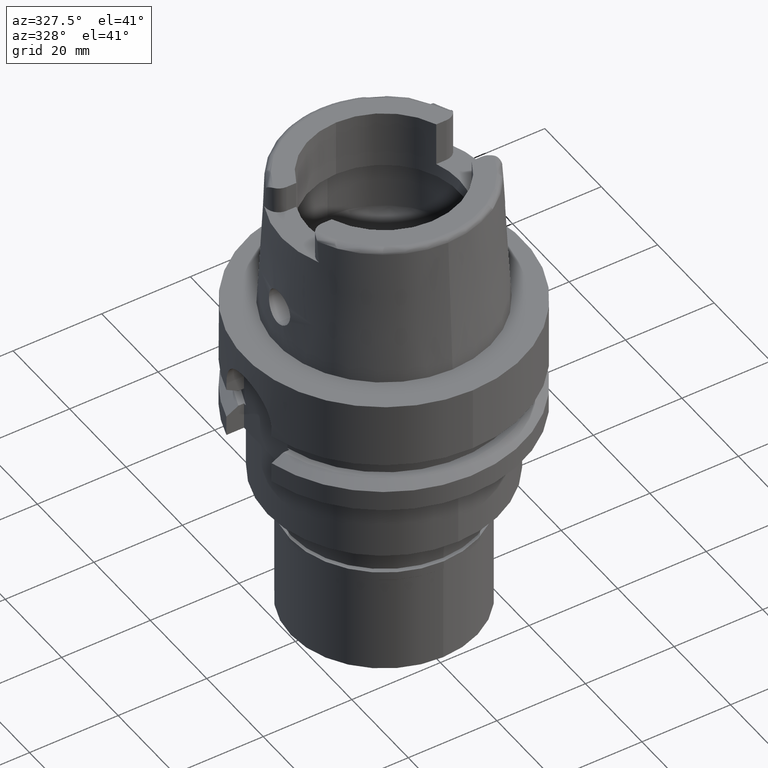
[diagram: clean part render]
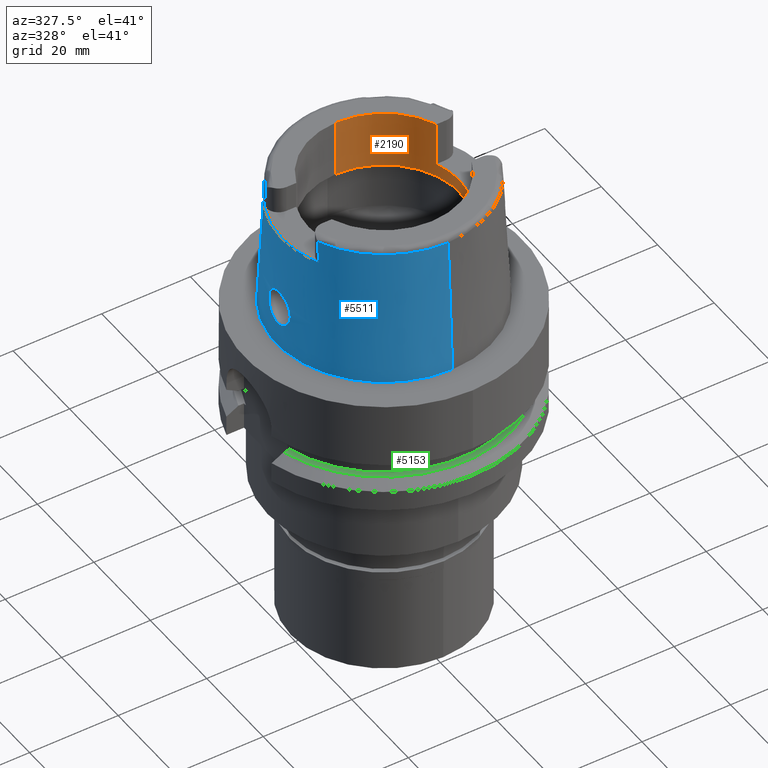
[diagram: same view with three faces highlighted in distinct colors, each labeled with its STEP entity id]
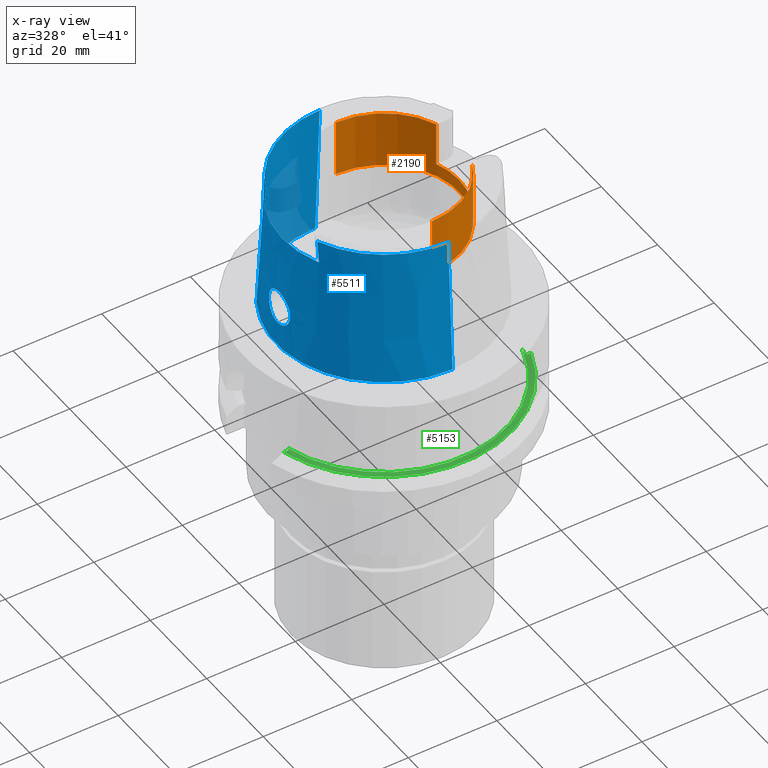
[diagram: x-ray of the same camera — body ghosted, the three highlighted faces saturated]
A machine part, auxiliary view with three faces highlighted in distinct colors.
The next image is the same camera in x-ray (body ghosted, the three faces saturated) — at least one of them is partly hidden behind the body in this view.
Their STEP definitions:

[orange] entity #2190 — the highlighted cylindrical surface (partial cylindrical patch) has radius 17 mm, axis along (0, 0, 1).
#102 = CIRCLE ( 'NONE', #1304, 17.00000000000000000 ) ;
#110 = CARTESIAN_POINT ( 'NONE',  ( 15.80149043602999903, -6.270000000000000462, 22.00000000000000000 ) ) ;
#145 = DIRECTION ( 'NONE',  ( 0.0000000000000000000, 0.0000000000000000000, -1.000000000000000000 ) ) ;
#430 = CARTESIAN_POINT ( 'NONE',  ( 0.0000000000000000000, -17.00000000000000000, 18.99602540378000270 ) ) ;
#465 = VECTOR ( 'NONE', #1370, 1000.000000000000000 ) ;
#515 = DIRECTION ( 'NONE',  ( 0.9294994374136111848, -0.3688235294118045182, 0.0000000000000000000 ) ) ;
#624 = ORIENTED_EDGE ( 'NONE', *, *, #1885, .F. ) ;
#777 = EDGE_CURVE ( 'NONE', #4863, #3178, #5332, .T. ) ;
#780 = VERTEX_POINT ( 'NONE', #4415 ) ;
#862 = VERTEX_POINT ( 'NONE', #973 ) ;
#973 = CARTESIAN_POINT ( 'NONE',  ( 0.0000000000000000000, 17.00000000000000000, 32.00000000000000000 ) ) ;
#1084 = VECTOR ( 'NONE', #4191, 1000.000000000000000 ) ;
#1172 = LINE ( 'NONE', #430, #3212 ) ;
#1201 = CARTESIAN_POINT ( 'NONE',  ( 0.0000000000000000000, -17.00000000000000000, 18.99602540378000270 ) ) ;
#1206 = DIRECTION ( 'NONE',  ( 0.0000000000000000000, 7.376457760500000442E-14, 1.000000000000000000 ) ) ;
#1242 = VERTEX_POINT ( 'NONE', #1201 ) ;
#1280 = AXIS2_PLACEMENT_3D ( 'NONE', #4886, #4013, #4831 ) ;
#1304 = AXIS2_PLACEMENT_3D ( 'NONE', #5213, #4380, #515 ) ;
#1320 = EDGE_LOOP ( 'NONE', ( #2134, #2162, #624, #1712, #1777, #2554, #4855, #3213 ) ) ;
#1370 = DIRECTION ( 'NONE',  ( 0.0000000000000000000, 0.0000000000000000000, 1.000000000000000000 ) ) ;
#1447 = CARTESIAN_POINT ( 'NONE',  ( 15.80149043602999903, -6.270000000000000462, 22.00000000000000000 ) ) ;
#1462 = CIRCLE ( 'NONE', #2096, 17.00000000000000000 ) ;
#1546 = DIRECTION ( 'NONE',  ( 0.0000000000000000000, -7.376457760500000442E-14, 1.000000000000000000 ) ) ;
#1712 = ORIENTED_EDGE ( 'NONE', *, *, #2494, .T. ) ;
#1740 = EDGE_CURVE ( 'NONE', #4856, #5006, #2481, .T. ) ;
#1777 = ORIENTED_EDGE ( 'NONE', *, *, #3456, .T. ) ;
#1851 = CYLINDRICAL_SURFACE ( 'NONE', #1280, 17.00000000000000000 ) ;
#1885 = EDGE_CURVE ( 'NONE', #3063, #862, #3691, .T. ) ;
#1996 = DIRECTION ( 'NONE',  ( 0.0000000000000000000, 1.000000000000000000, 0.0000000000000000000 ) ) ;
#2063 = DIRECTION ( 'NONE',  ( 0.9294994374136111848, 0.3688235294118045182, 0.0000000000000000000 ) ) ;
#2096 = AXIS2_PLACEMENT_3D ( 'NONE', #5389, #145, #1996 ) ;
#2134 = ORIENTED_EDGE ( 'NONE', *, *, #1740, .F. ) ;
#2155 = CARTESIAN_POINT ( 'NONE',  ( 0.0000000000000000000, 17.00000000000000000, 18.99602540378000270 ) ) ;
#2162 = ORIENTED_EDGE ( 'NONE', *, *, #2971, .T. ) ;
#2190 = ADVANCED_FACE ( 'NONE', ( #3517 ), #1851, .F. ) ;
#2457 = VECTOR ( 'NONE', #1546, 1000.000000000000000 ) ;
#2481 = LINE ( 'NONE', #3717, #1084 ) ;
#2494 = EDGE_CURVE ( 'NONE', #3063, #1242, #1462, .T. ) ;
#2554 = ORIENTED_EDGE ( 'NONE', *, *, #3495, .T. ) ;
#2971 = EDGE_CURVE ( 'NONE', #4856, #862, #5462, .T. ) ;
#3011 = AXIS2_PLACEMENT_3D ( 'NONE', #4611, #4990, #2063 ) ;
#3063 = VERTEX_POINT ( 'NONE', #2155 ) ;
#3079 = CARTESIAN_POINT ( 'NONE',  ( 15.80149043602999903, 6.270000000000000462, 32.00000000000000000 ) ) ;
#3120 = AXIS2_PLACEMENT_3D ( 'NONE', #3815, #5126, #4625 ) ;
#3178 = VERTEX_POINT ( 'NONE', #4926 ) ;
#3212 = VECTOR ( 'NONE', #1206, 1000.000000000000000 ) ;
#3213 = ORIENTED_EDGE ( 'NONE', *, *, #3696, .T. ) ;
#3456 = EDGE_CURVE ( 'NONE', #1242, #780, #1172, .T. ) ;
#3495 = EDGE_CURVE ( 'NONE', #780, #3178, #4460, .T. ) ;
#3517 = FACE_OUTER_BOUND ( 'NONE', #1320, .T. ) ;
#3612 = CARTESIAN_POINT ( 'NONE',  ( 15.80149043602999903, 6.270000000000000462, 22.00000000000000000 ) ) ;
#3691 = LINE ( 'NONE', #5433, #2457 ) ;
#3696 = EDGE_CURVE ( 'NONE', #4863, #5006, #102, .T. ) ;
#3717 = CARTESIAN_POINT ( 'NONE',  ( 15.80149043602999903, 6.270000000000000462, 32.00000000000000000 ) ) ;
#3815 = CARTESIAN_POINT ( 'NONE',  ( 0.0000000000000000000, 0.0000000000000000000, 32.00000000000000000 ) ) ;
#4013 = DIRECTION ( 'NONE',  ( 0.0000000000000000000, 0.0000000000000000000, 1.000000000000000000 ) ) ;
#4191 = DIRECTION ( 'NONE',  ( 0.0000000000000000000, 0.0000000000000000000, -1.000000000000000000 ) ) ;
#4380 = DIRECTION ( 'NONE',  ( 0.0000000000000000000, 0.0000000000000000000, 1.000000000000000000 ) ) ;
#4415 = CARTESIAN_POINT ( 'NONE',  ( 0.0000000000000000000, -17.00000000000000000, 32.00000000000000000 ) ) ;
#4460 = CIRCLE ( 'NONE', #3120, 17.00000000000000000 ) ;
#4611 = CARTESIAN_POINT ( 'NONE',  ( 0.0000000000000000000, 0.0000000000000000000, 32.00000000000000000 ) ) ;
#4625 = DIRECTION ( 'NONE',  ( 0.0000000000000000000, -1.000000000000000000, 0.0000000000000000000 ) ) ;
#4831 = DIRECTION ( 'NONE',  ( 0.0000000000000000000, 1.000000000000000000, 0.0000000000000000000 ) ) ;
#4855 = ORIENTED_EDGE ( 'NONE', *, *, #777, .F. ) ;
#4856 = VERTEX_POINT ( 'NONE', #3079 ) ;
#4863 = VERTEX_POINT ( 'NONE', #110 ) ;
#4886 = CARTESIAN_POINT ( 'NONE',  ( 0.0000000000000000000, 0.0000000000000000000, 0.0000000000000000000 ) ) ;
#4926 = CARTESIAN_POINT ( 'NONE',  ( 15.80149043602999903, -6.270000000000000462, 32.00000000000000000 ) ) ;
#4990 = DIRECTION ( 'NONE',  ( 0.0000000000000000000, 0.0000000000000000000, 1.000000000000000000 ) ) ;
#5006 = VERTEX_POINT ( 'NONE', #3612 ) ;
#5126 = DIRECTION ( 'NONE',  ( 0.0000000000000000000, 0.0000000000000000000, 1.000000000000000000 ) ) ;
#5213 = CARTESIAN_POINT ( 'NONE',  ( 0.0000000000000000000, 0.0000000000000000000, 22.00000000000000000 ) ) ;
#5332 = LINE ( 'NONE', #1447, #465 ) ;
#5389 = CARTESIAN_POINT ( 'NONE',  ( 0.0000000000000000000, 0.0000000000000000000, 18.99602540378000270 ) ) ;
#5433 = CARTESIAN_POINT ( 'NONE',  ( 0.0000000000000000000, 17.00000000000000000, 18.99602540378000270 ) ) ;
#5462 = CIRCLE ( 'NONE', #3011, 17.00000000000000000 ) ;

[blue] entity #5511 — the highlighted conical surface has half-angle 2.862 deg.
#37 = CARTESIAN_POINT ( 'NONE',  ( -23.86693676568982880, -2.548399371126447210, 6.248558186787277258 ) ) ;
#62 = CARTESIAN_POINT ( 'NONE',  ( -23.53907289649498580, -3.491479296582071346, 10.36839415100718398 ) ) ;
#85 = CARTESIAN_POINT ( 'NONE',  ( -23.91360589824375182, -2.217988703554286012, 5.973251924152157777 ) ) ;
#95 = ORIENTED_EDGE ( 'NONE', *, *, #1702, .T. ) ;
#113 = CARTESIAN_POINT ( 'NONE',  ( -23.70982271336208314, -3.366675918632559217, 7.346277406837117496 ) ) ;
#117 = CARTESIAN_POINT ( 'NONE',  ( -23.99205744312881450, 1.475681560589053420, 5.552510159684194591 ) ) ;
#122 = ORIENTED_EDGE ( 'NONE', *, *, #1430, .F. ) ;
#140 = CARTESIAN_POINT ( 'NONE',  ( -23.85670555656296443, -2.613932069647232126, 6.311144745075504936 ) ) ;
#143 = B_SPLINE_CURVE_WITH_KNOTS ( 'NONE', 3,
 ( #2357, #2414, #4537, #653 ),
 .UNSPECIFIED., .F., .F.,
 ( 4, 4 ),
 ( 0.0000000000000000000, 1.000000000000000000 ),
 .UNSPECIFIED. ) ;
#163 = VECTOR ( 'NONE', #2156, 1000.000000000000000 ) ;
#164 = CARTESIAN_POINT ( 'NONE',  ( -23.64747639225315012, -1.454741509203121064, 12.45633744927661546 ) ) ;
#187 = CARTESIAN_POINT ( 'NONE',  ( 0.0000000000000000000, 0.0000000000000000000, 15.42996356139999925 ) ) ;
#189 = ORIENTED_EDGE ( 'NONE', *, *, #707, .F. ) ;
#243 = DIRECTION ( 'NONE',  ( 0.0000000000000000000, 0.0000000000000000000, -1.000000000000000000 ) ) ;
#260 = CARTESIAN_POINT ( 'NONE',  ( -23.62294861244114230, 1.980044661199260592, 12.18497602897507015 ) ) ;
#314 = DIRECTION ( 'NONE',  ( -0.0006539142454761719559, -0.9999997861980568503, 0.0000000000000000000 ) ) ;
#315 = CARTESIAN_POINT ( 'NONE',  ( -23.81210958483903894, 2.876104592225963152, 6.592866706176272906 ) ) ;
#341 = CARTESIAN_POINT ( 'NONE',  ( -23.67874317346521096, 3.486601572408784655, 7.619356337110699151 ) ) ;
#376 = CARTESIAN_POINT ( 'NONE',  ( -23.56641494557612049, 3.749854574648461725, 9.043292389269531384 ) ) ;
#399 = ORIENTED_EDGE ( 'NONE', *, *, #5008, .T. ) ;
#407 = CARTESIAN_POINT ( 'NONE',  ( -23.57900744334221699, 3.750882477297525330, 8.791364892060393288 ) ) ;
#415 = ORIENTED_EDGE ( 'NONE', *, *, #2088, .T. ) ;
#434 = CARTESIAN_POINT ( 'NONE',  ( -23.54081574061181925, 3.424884273725877115, 10.52772890142810880 ) ) ;
#452 = CARTESIAN_POINT ( 'NONE',  ( -20.86999859286000003, -9.145656142293999480, 30.58059766507999910 ) ) ;
#457 = CARTESIAN_POINT ( 'NONE',  ( -23.85340754967043964, -2.634656254613015225, 6.331452810761935446 ) ) ;
#489 = CARTESIAN_POINT ( 'NONE',  ( -23.57218955514328229, -3.749466483250372573, 8.930617287637492296 ) ) ;
#516 = CARTESIAN_POINT ( 'NONE',  ( -23.99777630690454444, -1.405099971585415997, 5.523183015562680431 ) ) ;
#523 = VERTEX_POINT ( 'NONE', #1377 ) ;
#531 = CIRCLE ( 'NONE', #4789, 22.77198729362000407 ) ;
#542 = CARTESIAN_POINT ( 'NONE',  ( -23.75409996937189305, -3.172459026305946228, 6.996867773369867649 ) ) ;
#572 = CARTESIAN_POINT ( 'NONE',  ( -23.54847750676615803, -3.728846105121923049, 9.467021241163301681 ) ) ;
#599 = CARTESIAN_POINT ( 'NONE',  ( -23.67751368057999883, 0.0000000000000000000, 12.75000000000000000 ) ) ;
#608 = VERTEX_POINT ( 'NONE', #3765 ) ;
#653 = CARTESIAN_POINT ( 'NONE',  ( -20.86999859286000003, -9.150003160549998071, 30.54568941691999839 ) ) ;
#669 = CARTESIAN_POINT ( 'NONE',  ( -23.65043818808023701, 1.379773009011955986, 12.48700429463887573 ) ) ;
#692 = CARTESIAN_POINT ( 'NONE',  ( -23.62522415126909436, 1.936136883667349373, 12.21169758421638463 ) ) ;
#707 = EDGE_CURVE ( 'NONE', #2443, #3028, #1406, .T. ) ;
#708 = CARTESIAN_POINT ( 'NONE',  ( -23.55668953756119066, -3.099493075046542589, 11.11437400764885730 ) ) ;
#739 = DIRECTION ( 'NONE',  ( 0.0000000000000000000, 0.0000000000000000000, -1.000000000000000000 ) ) ;
#743 = CARTESIAN_POINT ( 'NONE',  ( -23.69267051159611981, 3.435346043563955121, 7.492802983915621162 ) ) ;
#773 = CARTESIAN_POINT ( 'NONE',  ( 0.0000000000000000000, 0.0000000000000000000, 30.85992712280000205 ) ) ;
#774 = CARTESIAN_POINT ( 'NONE',  ( -23.91007285515264869, 2.258131018523893641, 5.995682938418821273 ) ) ;
#797 = CARTESIAN_POINT ( 'NONE',  ( -23.55479551033515406, 3.737395613846533848, 9.313032911970585914 ) ) ;
#828 = CARTESIAN_POINT ( 'NONE',  ( -23.60614948376536404, 2.285497852762458759, 11.97558049787841838 ) ) ;
#857 = CARTESIAN_POINT ( 'NONE',  ( -23.59775295672951501, 2.427828993132538749, 11.85865638258414911 ) ) ;
#884 = ORIENTED_EDGE ( 'NONE', *, *, #2536, .F. ) ;
#911 = CARTESIAN_POINT ( 'NONE',  ( -23.69027898293606071, -3.443729445598351813, 7.515294903885840760 ) ) ;
#934 = CIRCLE ( 'NONE', #1413, 22.77198729362000051 ) ;
#970 = CARTESIAN_POINT ( 'NONE',  ( -23.99707010181375821, -1.414029753780785104, 5.526808701025024639 ) ) ;
#996 = CARTESIAN_POINT ( 'NONE',  ( -23.58567786491152418, -3.738471915505948928, 8.700316143051555429 ) ) ;
#999 = CARTESIAN_POINT ( 'NONE',  ( -23.97828719018148647, 1.633509258632567240, 5.624014295892469484 ) ) ;
#1026 = CARTESIAN_POINT ( 'NONE',  ( -23.85980409118172574, -2.594309442727411597, 6.292115682251250064 ) ) ;
#1056 = CARTESIAN_POINT ( 'NONE',  ( -23.64449928515978883, -1.526934000520813406, 12.42523288203314458 ) ) ;
#1085 = CARTESIAN_POINT ( 'NONE',  ( -23.62923924696841738, -1.859299983534948630, 12.25898013521621088 ) ) ;
#1112 = CARTESIAN_POINT ( 'NONE',  ( -23.57105231770103160, -2.858604598187148849, 11.42810442882995225 ) ) ;
#1120 = AXIS2_PLACEMENT_3D ( 'NONE', #1150, #739, #4125 ) ;
#1139 = CARTESIAN_POINT ( 'NONE',  ( -20.87000040551000168, 9.149999089200999691, 30.54560915661999942 ) ) ;
#1144 = CARTESIAN_POINT ( 'NONE',  ( -23.58262150368767252, -2.671109443045688536, 11.63204851972342802 ) ) ;
#1150 = CARTESIAN_POINT ( 'NONE',  ( 0.0000000000000000000, 0.0000000000000000000, 26.00000000000000000 ) ) ;
#1177 = CARTESIAN_POINT ( 'NONE',  ( -23.72480560330348354, 3.304306329497858297, 7.225787722733134189 ) ) ;
#1184 = ORIENTED_EDGE ( 'NONE', *, *, #4488, .F. ) ;
#1185 = CARTESIAN_POINT ( 'NONE',  ( 0.0000000000000000000, 0.0000000000000000000, 30.85992712280000205 ) ) ;
#1211 = CARTESIAN_POINT ( 'NONE',  ( -23.84601730783146323, 2.680075643955915243, 6.377071594063469462 ) ) ;
#1238 = EDGE_CURVE ( 'NONE', #608, #3165, #4023, .T. ) ;
#1248 = CARTESIAN_POINT ( 'NONE',  ( -23.77667941739695934, 3.064530174727576828, 6.835230246222567807 ) ) ;
#1274 = CARTESIAN_POINT ( 'NONE',  ( -23.83528166601506726, 2.743820866835554817, 6.443518864323947604 ) ) ;
#1308 = CARTESIAN_POINT ( 'NONE',  ( -23.57119514815224193, 2.847115031757780024, 11.45597089718927286 ) ) ;
#1377 = CARTESIAN_POINT ( 'NONE',  ( -20.86974104081999926, -9.111384060244999361, 30.85992587264000164 ) ) ;
#1391 = CARTESIAN_POINT ( 'NONE',  ( -23.63553820938227901, -3.633755880031289465, 8.041266003360489023 ) ) ;
#1406 = B_SPLINE_CURVE_WITH_KNOTS ( 'NONE', 3,
 ( #3685, #1541, #3265, #4983, #5040, #2834, #4549, #5012, #669, #4152, #5451, #4127, #3711, #2863, #4579, #1594, #692, #260, #2025, #3736, #3320, #5527, #5620, #828, #857, #3369, #4267, #3879, #5156, #2588, #1308, #2143, #5130, #3851, #4305, #2559, #434, #5593, #4744, #1735, #4692, #4668, #2946, #5064, #4212, #797, #2615, #3453, #4333, #376, #407, #4630, #1708, #4236, #2533, #3428, #3030, #2108, #341, #3818, #2974, #743, #2198, #1177, #3345, #5182, #5501, #2508, #2173, #5095, #1621, #1248, #2914, #315, #2077, #1274, #3789, #1647, #1211, #5559, #1675, #774, #2998, #3402, #4717, #999, #2640, #4012, #117, #3984, #1878, #4359, #2280, #3931, #3598 ),
 .UNSPECIFIED., .F., .F.,
 ( 4, 2, 2, 1, 1, 1, 2, 2, 2, 2, 1, 1, 2, 2, 2, 1, 1, 2, 2, 2, 2, 1, 1, 1, 2, 2, 2, 2, 1, 2, 2, 2, 2, 1, 1, 1, 2, 2, 2, 2, 1, 1, 2, 2, 2, 1, 1, 1, 2, 2, 2, 2, 2, 1, 1, 2, 2, 4 ),
 ( 0.0000000000000000000, 0.06249999999999567013, 0.09374999999999350520, 0.1093749999999924089, 0.1171874999999918537, 0.1210937499999916456, 0.1230468749999914652, 0.1249999999999912709, 0.1562499999999895917, 0.1718749999999887590, 0.1796874999999884259, 0.1835937499999881206, 0.1855468749999880373, 0.1874999999999879541, 0.2187499999999875933, 0.2343749999999873712, 0.2421874999999872602, 0.2460937499999873712, 0.2499999999999874545, 0.3124999999999888978, 0.3437499999999896194, 0.3593749999999899525, 0.3671874999999902300, 0.3710937499999905631, 0.3730468749999908962, 0.3749999999999912847, 0.4374999999999942824, 0.4687499999999960032, 0.4843749999999966138, 0.4921874999999970024, 0.4999999999999973355, 0.5625000000000000000, 0.5937500000000011102, 0.6093750000000019984, 0.6171875000000025535, 0.6210937500000026645, 0.6230468750000026645, 0.6250000000000026645, 0.6562500000000032196, 0.6718750000000035527, 0.6796875000000036637, 0.6835937500000037748, 0.6855468750000037748, 0.6875000000000037748, 0.7187500000000031086, 0.7343750000000028866, 0.7421875000000028866, 0.7460937500000027756, 0.7480468750000027756, 0.7500000000000027756, 0.8125000000000018874, 0.8437500000000014433, 0.8593750000000013323, 0.8671875000000012212, 0.8710937500000009992, 0.8730468750000009992, 0.8750000000000009992, 1.000000000000000000 ),
 .UNSPECIFIED. ) ;
#1413 = AXIS2_PLACEMENT_3D ( 'NONE', #773, #4211, #314 ) ;
#1421 = CARTESIAN_POINT ( 'NONE',  ( -24.05252611747000913, -0.2325062641190926982, 5.249999999999995559 ) ) ;
#1430 = EDGE_CURVE ( 'NONE', #3781, #523, #3491, .T. ) ;
#1445 = CARTESIAN_POINT ( 'NONE',  ( -24.01190396931671245, -1.213967389283530762, 5.450965328248620345 ) ) ;
#1474 = CARTESIAN_POINT ( 'NONE',  ( -24.04786694635565070, -0.4701825971772083390, 5.271686868304494844 ) ) ;
#1501 = CARTESIAN_POINT ( 'NONE',  ( -23.64626439432585769, -1.484483227917293258, 12.44370532445059219 ) ) ;
#1529 = CARTESIAN_POINT ( 'NONE',  ( -23.61647311026029783, -2.100244732309977991, 12.10668269088077764 ) ) ;
#1539 = ORIENTED_EDGE ( 'NONE', *, *, #1658, .T. ) ;
#1541 = CARTESIAN_POINT ( 'NONE',  ( -23.67751368057999528, 0.2261845899276223870, 12.75000000000000178 ) ) ;
#1556 = CARTESIAN_POINT ( 'NONE',  ( -23.61186578718647411, -2.183365671323152846, 12.04907515657591510 ) ) ;
#1594 = CARTESIAN_POINT ( 'NONE',  ( -23.62964050905474167, 1.849407224054583354, 12.26292852184180227 ) ) ;
#1612 = CARTESIAN_POINT ( 'NONE',  ( -23.58009706931573746, -2.711754786890547830, 11.59025959888125357 ) ) ;
#1621 = CARTESIAN_POINT ( 'NONE',  ( -23.76173591032293331, 3.136266348908495871, 6.944180876463341257 ) ) ;
#1647 = CARTESIAN_POINT ( 'NONE',  ( -23.84422667706581223, 2.690787340262043692, 6.388061568589341377 ) ) ;
#1658 = EDGE_CURVE ( 'NONE', #3825, #523, #934, .T. ) ;
#1675 = CARTESIAN_POINT ( 'NONE',  ( -23.88110697219536505, 2.468987446921765638, 6.163109209297871871 ) ) ;
#1702 = EDGE_CURVE ( 'NONE', #608, #4365, #531, .T. ) ;
#1708 = CARTESIAN_POINT ( 'NONE',  ( -23.62269479600756128, 3.665237063158671482, 8.197888833525086127 ) ) ;
#1735 = CARTESIAN_POINT ( 'NONE',  ( -23.53988041603913572, 3.456880562189013961, 10.45345164496857926 ) ) ;
#1792 = CARTESIAN_POINT ( 'NONE',  ( -20.86979783655000276, -9.115619586591000356, 30.82499216244000095 ) ) ;
#1796 = CARTESIAN_POINT ( 'NONE',  ( -23.74024690177523311, -3.236010739350211551, 7.101072110035448581 ) ) ;
#1822 = CARTESIAN_POINT ( 'NONE',  ( -23.53925539027454406, -3.482780331073523694, 10.39025275089137601 ) ) ;
#1839 = CARTESIAN_POINT ( 'NONE',  ( -20.86999859286000003, -9.150003160549998071, 30.54568941691999839 ) ) ;
#1845 = CARTESIAN_POINT ( 'NONE',  ( -23.88455557737880497, -2.429686111729484121, 6.142713444073161000 ) ) ;
#1873 = CARTESIAN_POINT ( 'NONE',  ( -23.69334030845979555, -3.431965208017772273, 7.488346675105336026 ) ) ;
#1878 = CARTESIAN_POINT ( 'NONE',  ( -23.99460756805540740, 1.444506445318488819, 5.539371910986499614 ) ) ;
#1897 = LINE ( 'NONE', #4052, #2051 ) ;
#1901 = CARTESIAN_POINT ( 'NONE',  ( -23.98208685718532251, -1.602173758101092638, 5.603767711986091804 ) ) ;
#1957 = CARTESIAN_POINT ( 'NONE',  ( -20.87000000000000099, 9.702213322398998585, 26.00000000000000000 ) ) ;
#1959 = CARTESIAN_POINT ( 'NONE',  ( -23.58295833446865686, -2.665693743501466706, 11.63753428848848337 ) ) ;
#1960 = AXIS2_PLACEMENT_3D ( 'NONE', #187, #243, #4483 ) ;
#2015 = CARTESIAN_POINT ( 'NONE',  ( -23.63951267324578609, -1.641222962009457387, 12.37225073941533537 ) ) ;
#2025 = CARTESIAN_POINT ( 'NONE',  ( -23.62017593725542142, 2.032114524079682294, 12.15175628196970692 ) ) ;
#2039 = CARTESIAN_POINT ( 'NONE',  ( -23.64288300526770215, -1.564521820001163244, 12.40816203251383598 ) ) ;
#2051 = VECTOR ( 'NONE', #4967, 1000.000000000000000 ) ;
#2070 = CARTESIAN_POINT ( 'NONE',  ( -20.86989332434000133, 9.124125752769000286, 30.75512690550999650 ) ) ;
#2075 = CARTESIAN_POINT ( 'NONE',  ( 0.0000000000000000000, 22.77198729362000051, 30.85992712280000205 ) ) ;
#2077 = CARTESIAN_POINT ( 'NONE',  ( -23.82278402448928389, 2.816412120716584422, 6.522719428519566875 ) ) ;
#2088 = EDGE_CURVE ( 'NONE', #3885, #2384, #2106, .T. ) ;
#2106 = CIRCLE ( 'NONE', #3718, 24.31503482328999866 ) ;
#2108 = CARTESIAN_POINT ( 'NONE',  ( -23.67625605228635521, 3.495636864080432726, 7.642247016898762624 ) ) ;
#2143 = CARTESIAN_POINT ( 'NONE',  ( -23.56125733369829334, 3.008786301809472263, 11.25149727342976647 ) ) ;
#2152 = EDGE_LOOP ( 'NONE', ( #4493, #5612, #95, #399, #415, #884, #1539, #122, #4507, #4684 ) ) ;
#2156 = DIRECTION ( 'NONE',  ( 0.0000000000000000000, -0.04993926899645239476, -0.9987522562738468945 ) ) ;
#2173 = CARTESIAN_POINT ( 'NONE',  ( -23.75857800048417801, 3.151325765911684229, 6.967335915439326399 ) ) ;
#2198 = CARTESIAN_POINT ( 'NONE',  ( -23.70467341150807172, 3.388770747556582474, 7.389468747164110063 ) ) ;
#2225 = CARTESIAN_POINT ( 'NONE',  ( -23.65916494731278519, -3.560589809446938148, 7.793148687283476761 ) ) ;
#2254 = CARTESIAN_POINT ( 'NONE',  ( -23.58021830477617797, -3.744757397502449514, 8.787639155437336314 ) ) ;
#2277 = CARTESIAN_POINT ( 'NONE',  ( -23.96281606204351533, -1.801518040395591047, 5.701926437908838352 ) ) ;
#2280 = CARTESIAN_POINT ( 'NONE',  ( -24.03355402783665795, 0.9597228018040118158, 5.339038238792069180 ) ) ;
#2335 = CARTESIAN_POINT ( 'NONE',  ( -23.57076657264601849, -3.749875813616083242, 8.957358290968347347 ) ) ;
#2357 = CARTESIAN_POINT ( 'NONE',  ( -20.86999931535000385, -9.702216590572000143, 26.00000000000000000 ) ) ;
#2358 = CARTESIAN_POINT ( 'NONE',  ( -23.64764117235090168, -1.450669297853332651, 12.45805260406757142 ) ) ;
#2383 = CARTESIAN_POINT ( 'NONE',  ( -23.56840573119958648, -2.902124649144996571, 11.37583869404859271 ) ) ;
#2384 = VERTEX_POINT ( 'NONE', #3382 ) ;
#2414 = CARTESIAN_POINT ( 'NONE',  ( -20.87000000000000099, -9.517135092919289718, 27.56041024058491118 ) ) ;
#2443 = VERTEX_POINT ( 'NONE', #5359 ) ;
#2508 = CARTESIAN_POINT ( 'NONE',  ( -23.75557938732305274, 3.165541702338235286, 6.989433065581452276 ) ) ;
#2533 = CARTESIAN_POINT ( 'NONE',  ( -23.65042748145133444, 3.583781491580630973, 7.894093917726451970 ) ) ;
#2536 = EDGE_CURVE ( 'NONE', #3825, #2384, #5141, .T. ) ;
#2559 = CARTESIAN_POINT ( 'NONE',  ( -23.54217116025427714, 3.385185970402292188, 10.61503469236005337 ) ) ;
#2587 = CONICAL_SURFACE ( 'NONE', #1960, 23.54351105844999736, 0.04996004983832824653 ) ;
#2588 = CARTESIAN_POINT ( 'NONE',  ( -23.58452253103427410, 2.640987395853088504, 11.66232603909234022 ) ) ;
#2615 = CARTESIAN_POINT ( 'NONE',  ( -23.55823049826519622, 3.744172419575846344, 9.223392986036472507 ) ) ;
#2640 = CARTESIAN_POINT ( 'NONE',  ( -23.98508780632461423, 1.557406987274509769, 5.588582923610379893 ) ) ;
#2657 = CARTESIAN_POINT ( 'NONE',  ( -20.86989310983999957, -9.124125562990998972, 30.75513688798999823 ) ) ;
#2673 = VERTEX_POINT ( 'NONE', #3608 ) ;
#2747 = CARTESIAN_POINT ( 'NONE',  ( -23.53947603672050803, -3.630468962214536077, 9.947402164284465442 ) ) ;
#2779 = CARTESIAN_POINT ( 'NONE',  ( -23.53872130686582764, -3.511272278232731914, 10.31726338497156270 ) ) ;
#2798 = CARTESIAN_POINT ( 'NONE',  ( -23.58242515161169806, -2.674267349442099651, 11.62883989824676512 ) ) ;
#2823 = CARTESIAN_POINT ( 'NONE',  ( -23.56097155131818255, -3.025943496315236736, 11.21898938130886769 ) ) ;
#2834 = CARTESIAN_POINT ( 'NONE',  ( -23.65928294391524744, 1.127723691531520522, 12.57698042887864531 ) ) ;
#2863 = CARTESIAN_POINT ( 'NONE',  ( -23.64016007769428285, 1.629129562121118591, 12.37988843132438532 ) ) ;
#2878 = CARTESIAN_POINT ( 'NONE',  ( -23.60632189273907144, -2.281261508594775389, 11.97677745135559668 ) ) ;
#2899 = EDGE_CURVE ( 'NONE', #3165, #3822, #5132, .T. ) ;
#2914 = CARTESIAN_POINT ( 'NONE',  ( -23.79081113822478244, 2.991974080024986105, 6.736006982543814026 ) ) ;
#2924 = DIRECTION ( 'NONE',  ( -0.9164655183265837390, 0.4001136759951928745, 0.0000000000000000000 ) ) ;
#2946 = CARTESIAN_POINT ( 'NONE',  ( -23.53834517510676250, 3.630205079123302703, 9.971410252296070809 ) ) ;
#2974 = CARTESIAN_POINT ( 'NONE',  ( -23.68142465180497780, 3.476791983498621175, 7.594845390269592045 ) ) ;
#2998 = CARTESIAN_POINT ( 'NONE',  ( -23.94702313564318885, 1.943840893170437178, 5.790696842323831639 ) ) ;
#3028 = VERTEX_POINT ( 'NONE', #5165 ) ;
#3030 = CARTESIAN_POINT ( 'NONE',  ( -23.67053328333213713, 3.516120298814168876, 7.695675379310091380 ) ) ;
#3085 = CARTESIAN_POINT ( 'NONE',  ( -23.79651084493820434, -2.969631573496753330, 6.697408355459383955 ) ) ;
#3149 = CARTESIAN_POINT ( 'NONE',  ( -24.01758233411234045, -1.125085929231918636, 5.422218825660601205 ) ) ;
#3165 = VERTEX_POINT ( 'NONE', #3992 ) ;
#3177 = CARTESIAN_POINT ( 'NONE',  ( -23.59735264442415215, -3.721550044466943152, 8.524084067195749626 ) ) ;
#3205 = CARTESIAN_POINT ( 'NONE',  ( -23.54104773735423706, -3.659594206878918676, 9.827554088760006579 ) ) ;
#3232 = CARTESIAN_POINT ( 'NONE',  ( -23.59428146664826187, -2.485351782107193319, 11.80879757820457598 ) ) ;
#3255 = CARTESIAN_POINT ( 'NONE',  ( -23.61623115223439839, -2.104643205043622789, 12.10370605627159613 ) ) ;
#3265 = CARTESIAN_POINT ( 'NONE',  ( -23.67508291569135537, 0.4619866742327523035, 12.72949589301829754 ) ) ;
#3281 = CARTESIAN_POINT ( 'NONE',  ( -23.61588654514601515, -2.110899463028394152, 12.09945442961494777 ) ) ;
#3312 = CARTESIAN_POINT ( 'NONE',  ( -23.53946649069358443, -3.473383394216167375, 10.41355827642145293 ) ) ;
#3320 = CARTESIAN_POINT ( 'NONE',  ( -23.61814774169252118, 2.069624337900883404, 12.12717700283748989 ) ) ;
#3337 = CARTESIAN_POINT ( 'NONE',  ( -23.64699503738819075, -1.466596865459513621, 12.45132366724636519 ) ) ;
#3345 = CARTESIAN_POINT ( 'NONE',  ( -23.73187097422319169, 3.273715085375766165, 7.169789818968509643 ) ) ;
#3369 = CARTESIAN_POINT ( 'NONE',  ( -23.59355217100311108, 2.497558444685567647, 11.79844615899188653 ) ) ;
#3382 = CARTESIAN_POINT ( 'NONE',  ( 0.0000000000000000000, -24.31503482328999866, -9.841016890276999833E-13 ) ) ;
#3392 = CARTESIAN_POINT ( 'NONE',  ( -20.86974110883999955, 9.111383541124999041, 30.85992743326000110 ) ) ;
#3402 = CARTESIAN_POINT ( 'NONE',  ( -23.95825680514912648, 1.839349385048463903, 5.730011915594805494 ) ) ;
#3428 = CARTESIAN_POINT ( 'NONE',  ( -23.65940980060945265, 3.554710681934169170, 7.802560464549448405 ) ) ;
#3453 = CARTESIAN_POINT ( 'NONE',  ( -23.56216969251787674, 3.747720454209733543, 9.134074154354864916 ) ) ;
#3481 = CIRCLE ( 'NONE', #1120, 23.01499170873999134 ) ;
#3483 = EDGE_LOOP ( 'NONE', ( #189, #1184 ) ) ;
#3491 = B_SPLINE_CURVE_WITH_KNOTS ( 'NONE', 3,
 ( #1839, #452, #3532, #2657, #1792, #4407 ),
 .UNSPECIFIED., .F., .F.,
 ( 4, 1, 1, 4 ),
 ( 0.0000000000000000000, 0.3333333333333000081, 0.6666666666667000474, 1.000000000000000000 ),
 .UNSPECIFIED. ) ;
#3514 = CARTESIAN_POINT ( 'NONE',  ( -23.53847581952525303, -3.577581770201611278, 10.12572315164280212 ) ) ;
#3532 = CARTESIAN_POINT ( 'NONE',  ( -20.86998097129999863, -9.136996582012999468, 30.65033329799000228 ) ) ;
#3536 = CARTESIAN_POINT ( 'NONE',  ( -23.53938412224086463, -3.476932966353353027, 10.40481268977713825 ) ) ;
#3568 = CARTESIAN_POINT ( 'NONE',  ( -23.89204041954330293, -2.376715549713676268, 6.098574893834931565 ) ) ;
#3594 = CARTESIAN_POINT ( 'NONE',  ( -20.86999859286000003, -9.150003160549998071, 30.54568941691999839 ) ) ;
#3598 = CARTESIAN_POINT ( 'NONE',  ( -24.05252611746999847, 7.753366781647998699E-14, 5.250000000000000000 ) ) ;
#3608 = CARTESIAN_POINT ( 'NONE',  ( -20.86999931535000385, -9.702216590572000143, 26.00000000000000000 ) ) ;
#3642 = CARTESIAN_POINT ( 'NONE',  ( -23.61537164376080966, -2.120237744415277792, 12.09308756806806429 ) ) ;
#3666 = FACE_OUTER_BOUND ( 'NONE', #2152, .T. ) ;
#3673 = CARTESIAN_POINT ( 'NONE',  ( 0.0000000000000000000, -22.77198729362000051, 30.85992712280000205 ) ) ;
#3674 = CARTESIAN_POINT ( 'NONE',  ( -23.57527498726469517, -2.789791845284104177, 11.50614530734081775 ) ) ;
#3685 = CARTESIAN_POINT ( 'NONE',  ( -23.67751368057999883, 0.0000000000000000000, 12.75000000000000000 ) ) ;
#3711 = CARTESIAN_POINT ( 'NONE',  ( -23.64461154279262445, 1.526828918330954687, 12.42659700833796599 ) ) ;
#3718 = AXIS2_PLACEMENT_3D ( 'NONE', #5560, #5131, #5621 ) ;
#3736 = CARTESIAN_POINT ( 'NONE',  ( -23.61896238791443636, 2.054598769638676270, 12.13706946096298545 ) ) ;
#3753 = CARTESIAN_POINT ( 'NONE',  ( -23.60997495842636340, -2.216922664050854586, 12.02464351915915231 ) ) ;
#3765 = CARTESIAN_POINT ( 'NONE',  ( -20.86974110883999955, 9.111383541124999041, 30.85992743326000110 ) ) ;
#3781 = VERTEX_POINT ( 'NONE', #3594 ) ;
#3782 = CARTESIAN_POINT ( 'NONE',  ( -20.86998013696999976, 9.136999223130001013, 30.65036981053000176 ) ) ;
#3789 = CARTESIAN_POINT ( 'NONE',  ( -23.84154151892806794, 2.706804287063559133, 6.404595846856984132 ) ) ;
#3812 = CARTESIAN_POINT ( 'NONE',  ( -20.87000040551000168, 9.149999089200999691, 30.54560915661999942 ) ) ;
#3818 = CARTESIAN_POINT ( 'NONE',  ( -23.68040892223172023, 3.480520782069465024, 7.604097949646052790 ) ) ;
#3822 = VERTEX_POINT ( 'NONE', #1957 ) ;
#3825 = VERTEX_POINT ( 'NONE', #3673 ) ;
#3838 = EDGE_CURVE ( 'NONE', #2673, #3781, #143, .T. ) ;
#3851 = CARTESIAN_POINT ( 'NONE',  ( -23.54724431543101204, 3.268096955834818740, 10.84258591701417096 ) ) ;
#3879 = CARTESIAN_POINT ( 'NONE',  ( -23.58654361010976785, 2.609388539349847047, 11.69329297915370702 ) ) ;
#3885 = VERTEX_POINT ( 'NONE', #4117 ) ;
#3929 = CARTESIAN_POINT ( 'NONE',  ( -23.69991197860129972, -3.406237261255837367, 7.431233387739938578 ) ) ;
#3931 = CARTESIAN_POINT ( 'NONE',  ( -24.05252611747000202, 0.4685048129577800702, 5.250000000000009770 ) ) ;
#3958 = CARTESIAN_POINT ( 'NONE',  ( -23.55705024305500217, -3.750795020597395446, 9.225389481899499700 ) ) ;
#3981 = CARTESIAN_POINT ( 'NONE',  ( -23.92679748698672171, -2.112440567168403227, 5.899168020048473515 ) ) ;
#3984 = CARTESIAN_POINT ( 'NONE',  ( -23.99359259507223996, 1.456966021966892288, 5.544599060619758824 ) ) ;
#3992 = CARTESIAN_POINT ( 'NONE',  ( -20.87000040551000168, 9.149999089200999691, 30.54560915661999942 ) ) ;
#4010 = CARTESIAN_POINT ( 'NONE',  ( -23.82483661827196286, -2.812649495064081684, 6.507898812718782011 ) ) ;
#4012 = CARTESIAN_POINT ( 'NONE',  ( -23.98838657464701640, 1.519530167650405605, 5.571466582269266610 ) ) ;
#4023 = B_SPLINE_CURVE_WITH_KNOTS ( 'NONE', 3,
 ( #3392, #4204, #2070, #3782, #5520, #3812 ),
 .UNSPECIFIED., .F., .F.,
 ( 4, 1, 1, 4 ),
 ( 0.0000000000000000000, 0.3333333333333000081, 0.6666666666667000474, 1.000000000000000000 ),
 .UNSPECIFIED. ) ;
#4034 = CARTESIAN_POINT ( 'NONE',  ( -23.71989313676844091, -3.324294785510838235, 7.263520130221996496 ) ) ;
#4052 = CARTESIAN_POINT ( 'NONE',  ( 0.0000000000000000000, 22.77198729362000051, 30.85992712280000205 ) ) ;
#4056 = CARTESIAN_POINT ( 'NONE',  ( -23.58584161187914319, -2.622122654595141711, 11.68369932162007885 ) ) ;
#4078 = FACE_BOUND ( 'NONE', #3483, .T. ) ;
#4117 = CARTESIAN_POINT ( 'NONE',  ( 0.0000000000000000000, 24.31503482328999866, -1.705302565823999926E-12 ) ) ;
#4125 = DIRECTION ( 'NONE',  ( -0.9068002397791221636, -0.4215605829967106200, 0.0000000000000000000 ) ) ;
#4127 = CARTESIAN_POINT ( 'NONE',  ( -23.64857781186163521, 1.427310338101408504, 12.46775508506759067 ) ) ;
#4142 = CARTESIAN_POINT ( 'NONE',  ( -23.58144849310953006, -2.689982922579907676, 11.61278258400672669 ) ) ;
#4152 = CARTESIAN_POINT ( 'NONE',  ( -23.64954801539154161, 1.402660035774608627, 12.47780283863645678 ) ) ;
#4169 = CARTESIAN_POINT ( 'NONE',  ( -23.66765883250442570, -0.9515036898739328564, 12.66615373187040028 ) ) ;
#4204 = CARTESIAN_POINT ( 'NONE',  ( -20.86979790994000084, 9.115619351649998592, 30.82499135255000056 ) ) ;
#4211 = DIRECTION ( 'NONE',  ( 0.0000000000000000000, 0.0000000000000000000, -1.000000000000000000 ) ) ;
#4212 = CARTESIAN_POINT ( 'NONE',  ( -23.54859780957185933, 3.719459429760219038, 9.492528033590108549 ) ) ;
#4236 = CARTESIAN_POINT ( 'NONE',  ( -23.63319896927395902, 3.636775360929737300, 8.076724773994001794 ) ) ;
#4267 = CARTESIAN_POINT ( 'NONE',  ( -23.58864684045748561, 2.576249162346222032, 11.72526874015176190 ) ) ;
#4305 = CARTESIAN_POINT ( 'NONE',  ( -23.54369936168428623, 3.347757878200973369, 10.69064701594456146 ) ) ;
#4320 = EDGE_CURVE ( 'NONE', #2673, #3822, #3481, .T. ) ;
#4333 = CARTESIAN_POINT ( 'NONE',  ( -23.56490786786911684, 3.749375525138953780, 9.074616708966365408 ) ) ;
#4359 = CARTESIAN_POINT ( 'NONE',  ( -23.99501697076891205, 1.439453716327697697, 5.537264553817606405 ) ) ;
#4365 = VERTEX_POINT ( 'NONE', #2075 ) ;
#4382 = CARTESIAN_POINT ( 'NONE',  ( -23.57532548907224523, -3.747978080891394725, 8.873614973393374683 ) ) ;
#4407 = CARTESIAN_POINT ( 'NONE',  ( -20.86974104081999926, -9.111384060244999361, 30.85992587264000164 ) ) ;
#4412 = CARTESIAN_POINT ( 'NONE',  ( -23.99892289979597138, -1.390454640844187795, 5.517300161487356469 ) ) ;
#4436 = CARTESIAN_POINT ( 'NONE',  ( -23.85463060590261364, -2.627000950408391322, 6.323911538603638860 ) ) ;
#4464 = CARTESIAN_POINT ( 'NONE',  ( -24.03388943301256830, -0.8276374240914532443, 5.340459193435788343 ) ) ;
#4483 = DIRECTION ( 'NONE',  ( 0.0000000000000000000, -1.000000000000000000, 0.0000000000000000000 ) ) ;
#4488 = EDGE_CURVE ( 'NONE', #3028, #2443, #4879, .T. ) ;
#4492 = CARTESIAN_POINT ( 'NONE',  ( -23.54134642425172430, -3.395177618169952893, 10.60480961321079185 ) ) ;
#4493 = ORIENTED_EDGE ( 'NONE', *, *, #2899, .F. ) ;
#4507 = ORIENTED_EDGE ( 'NONE', *, *, #3838, .F. ) ;
#4533 = CARTESIAN_POINT ( 'NONE',  ( -20.87000000000000099, 9.517059732168780428, 27.56089567595799039 ) ) ;
#4537 = CARTESIAN_POINT ( 'NONE',  ( -20.87000000000000099, -9.333063949578622953, 29.07564004622490472 ) ) ;
#4539 = CARTESIAN_POINT ( 'NONE',  ( -23.67751368058000594, -0.4549834230990796313, 12.75000000000000178 ) ) ;
#4549 = CARTESIAN_POINT ( 'NONE',  ( -23.65632044920722876, 1.219395919964804786, 12.54724499145180161 ) ) ;
#4579 = CARTESIAN_POINT ( 'NONE',  ( -23.63240512108486158, 1.793038628779165977, 12.29413337773382686 ) ) ;
#4596 = CARTESIAN_POINT ( 'NONE',  ( -23.54586581478204721, -3.296123540020791332, 10.80494007514129606 ) ) ;
#4630 = CARTESIAN_POINT ( 'NONE',  ( -23.59412678076392211, 3.731742809861808396, 8.557308446898165499 ) ) ;
#4668 = CARTESIAN_POINT ( 'NONE',  ( -23.53725250845516115, 3.558453608605617102, 10.20948820649446098 ) ) ;
#4684 = ORIENTED_EDGE ( 'NONE', *, *, #4320, .T. ) ;
#4692 = CARTESIAN_POINT ( 'NONE',  ( -23.53982320900321668, 3.459017107716821915, 10.44836532920695582 ) ) ;
#4717 = CARTESIAN_POINT ( 'NONE',  ( -23.97348267342169237, 1.684709805232359026, 5.649233680146961589 ) ) ;
#4744 = CARTESIAN_POINT ( 'NONE',  ( -23.54002315669925594, 3.451663937358808276, 10.46579704223974794 ) ) ;
#4789 = AXIS2_PLACEMENT_3D ( 'NONE', #1185, #5486, #2924 ) ;
#4798 = CARTESIAN_POINT ( 'NONE',  ( -24.05252611746999847, 7.753366781647998699E-14, 5.250000000000000000 ) ) ;
#4854 = CARTESIAN_POINT ( 'NONE',  ( -24.00062913921772534, -1.368472610612581519, 5.508550774380538861 ) ) ;
#4879 = B_SPLINE_CURVE_WITH_KNOTS ( 'NONE', 3,
 ( #4798, #1421, #1474, #4464, #5356, #3149, #1445, #5244, #4854, #4412, #516, #970, #1901, #2277, #3981, #85, #3568, #1845, #5298, #37, #1026, #140, #4436, #457, #4010, #3085, #542, #1796, #4034, #113, #3929, #1873, #911, #2225, #1391, #5330, #3177, #996, #2254, #4382, #489, #2335, #3958, #572, #3205, #2747, #3514, #4912, #2779, #62, #1822, #3536, #3312, #4492, #4596, #708, #2823, #2383, #1112, #3674, #4944, #1612, #4142, #4970, #2798, #1144, #5415, #1959, #4056, #3232, #5442, #5495, #2878, #3753, #1556, #5468, #3642, #3281, #3255, #1529, #4998, #1085, #5385, #2015, #2039, #1056, #1501, #3337, #164, #2358, #4169, #4539, #599 ),
 .UNSPECIFIED., .F., .F.,
 ( 4, 2, 2, 1, 1, 1, 2, 2, 2, 2, 2, 1, 1, 2, 2, 2, 2, 1, 2, 2, 2, 2, 1, 2, 2, 2, 2, 1, 1, 1, 2, 2, 2, 2, 2, 1, 1, 1, 1, 2, 2, 2, 2, 2, 1, 1, 1, 2, 2, 2, 2, 1, 1, 2, 2, 4 ),
 ( 0.0000000000000000000, 0.06249999999983120447, 0.09374999999974679976, 0.1093749999997045974, 0.1171874999996834477, 0.1210937499996729005, 0.1230468749996676270, 0.1249999999996623534, 0.1874999999994902966, 0.2187499999994041988, 0.2343749999993611499, 0.2421874999993396949, 0.2460937499993288979, 0.2480468749993234856, 0.2499999999993180733, 0.3124999999991438515, 0.3437499999990568655, 0.3593749999990132893, 0.3671874999989915289, 0.3749999999989697685, 0.4374999999987942423, 0.4687499999987064792, 0.4843749999986629029, 0.4921874999986411425, 0.4999999999986193822, 0.5624999999984465759, 0.5937499999983600896, 0.6093749999983166799, 0.6171874999982951415, 0.6210937499982841503, 0.6230468749982787102, 0.6249999999982731591, 0.6874999999980951904, 0.7187499999980063725, 0.7343749999979619636, 0.7421874999979397591, 0.7460937499979285459, 0.7480468749979229948, 0.7490234374979203302, 0.7495117187479189980, 0.7499999999979177767, 0.7812499999981813437, 0.7968749999983132382, 0.8046874999983790744, 0.8085937499984119370, 0.8105468749984283683, 0.8115234374984365839, 0.8120117187484405807, 0.8124999999984445775, 0.8437499999987044808, 0.8593749999988343768, 0.8671874999988993249, 0.8710937499989317434, 0.8730468749989479527, 0.8749999999989642729, 1.000000000000000000 ),
 .UNSPECIFIED. ) ;
#4912 = CARTESIAN_POINT ( 'NONE',  ( -23.53831504436645616, -3.548839860910868893, 10.21452008017877056 ) ) ;
#4944 = CARTESIAN_POINT ( 'NONE',  ( -23.57744951949940670, -2.754502593714980740, 11.54507582162326251 ) ) ;
#4967 = DIRECTION ( 'NONE',  ( 0.0000000000000000000, 0.04993926899645239476, -0.9987522562738468945 ) ) ;
#4970 = CARTESIAN_POINT ( 'NONE',  ( -23.58213111722783495, -2.678997046395595216, 11.62402557555479454 ) ) ;
#4983 = CARTESIAN_POINT ( 'NONE',  ( -23.66779062102547115, 0.8231153389083962768, 12.66060090212740263 ) ) ;
#4998 = CARTESIAN_POINT ( 'NONE',  ( -23.62327590040328218, -1.976487886708729658, 12.19023696950434754 ) ) ;
#5008 = EDGE_CURVE ( 'NONE', #4365, #3885, #1897, .T. ) ;
#5012 = CARTESIAN_POINT ( 'NONE',  ( -23.65246540801665986, 1.326340444467167146, 12.50787619330567146 ) ) ;
#5040 = CARTESIAN_POINT ( 'NONE',  ( -23.66475216491467748, 0.9446984545377440368, 12.63128678047923792 ) ) ;
#5049 = CARTESIAN_POINT ( 'NONE',  ( -20.87000000000000099, 9.332993010268779699, 29.07609872816465213 ) ) ;
#5064 = CARTESIAN_POINT ( 'NONE',  ( -23.54536237585876890, 3.701654864693944003, 9.612480988584373165 ) ) ;
#5095 = CARTESIAN_POINT ( 'NONE',  ( -23.76058815843496319, 3.141755884437640312, 6.952575440666201700 ) ) ;
#5130 = CARTESIAN_POINT ( 'NONE',  ( -23.55025901911112030, 3.208577729820996538, 10.94484258932471121 ) ) ;
#5131 = DIRECTION ( 'NONE',  ( 0.0000000000000000000, 0.0000000000000000000, 1.000000000000000000 ) ) ;
#5132 = B_SPLINE_CURVE_WITH_KNOTS ( 'NONE', 3,
 ( #1139, #5049, #4533, #5487 ),
 .UNSPECIFIED., .F., .F.,
 ( 4, 4 ),
 ( 0.0000000000000000000, 1.000000000000000000 ),
 .UNSPECIFIED. ) ;
#5141 = LINE ( 'NONE', #5201, #163 ) ;
#5156 = CARTESIAN_POINT ( 'NONE',  ( -23.58514124636057474, 2.631349744021342918, 11.67184096560551154 ) ) ;
#5165 = CARTESIAN_POINT ( 'NONE',  ( -24.05252611746999847, 7.753366781647998699E-14, 5.250000000000000000 ) ) ;
#5182 = CARTESIAN_POINT ( 'NONE',  ( -23.74300099108464934, 3.223752064800784023, 7.084010029662280772 ) ) ;
#5201 = CARTESIAN_POINT ( 'NONE',  ( 0.0000000000000000000, -22.77198729362000051, 30.85992712280000205 ) ) ;
#5244 = CARTESIAN_POINT ( 'NONE',  ( -24.00451481512754626, -1.317086760047673888, 5.488659181888120742 ) ) ;
#5298 = CARTESIAN_POINT ( 'NONE',  ( -23.87288379023557283, -2.508873422236927109, 6.212654593121618163 ) ) ;
#5330 = CARTESIAN_POINT ( 'NONE',  ( -23.60614337642178739, -3.704464850338905713, 8.404472216771425863 ) ) ;
#5356 = CARTESIAN_POINT ( 'NONE',  ( -24.02806546911962826, -0.9469294355591607593, 5.369411815900365426 ) ) ;
#5359 = CARTESIAN_POINT ( 'NONE',  ( -23.67751368057999883, 0.0000000000000000000, 12.75000000000000000 ) ) ;
#5385 = CARTESIAN_POINT ( 'NONE',  ( -23.63708208891418749, -1.694394240685683339, 12.34595130639373295 ) ) ;
#5415 = CARTESIAN_POINT ( 'NONE',  ( -23.58281616222851085, -2.667979537452731531, 11.63522014075440403 ) ) ;
#5442 = CARTESIAN_POINT ( 'NONE',  ( -23.59778057468019696, -2.427668040443041964, 11.85960995267826057 ) ) ;
#5451 = CARTESIAN_POINT ( 'NONE',  ( -23.64894981934472895, 1.417914777833031881, 12.47161136119665947 ) ) ;
#5468 = CARTESIAN_POINT ( 'NONE',  ( -23.61418427192705849, -2.141705602835555222, 12.07830811474904742 ) ) ;
#5486 = DIRECTION ( 'NONE',  ( 0.0000000000000000000, 0.0000000000000000000, -1.000000000000000000 ) ) ;
#5487 = CARTESIAN_POINT ( 'NONE',  ( -20.87000000000000099, 9.702213322398998585, 26.00000000000000000 ) ) ;
#5495 = CARTESIAN_POINT ( 'NONE',  ( -23.60405797139144113, -2.320454749394097238, 11.94620095292660444 ) ) ;
#5501 = CARTESIAN_POINT ( 'NONE',  ( -23.74869898963584447, 3.197751444257703302, 7.040675421209551033 ) ) ;
#5511 = ADVANCED_FACE ( 'NONE', ( #3666, #4078 ), #2587, .T. ) ;
#5520 = CARTESIAN_POINT ( 'NONE',  ( -20.87000040551000168, 9.145651821177999352, 30.58051936379000324 ) ) ;
#5527 = CARTESIAN_POINT ( 'NONE',  ( -23.61767369003573336, 2.078323601147854305, 12.12139871117485868 ) ) ;
#5559 = CARTESIAN_POINT ( 'NONE',  ( -23.84676815643320680, 2.675573638525234443, 6.372475471741925190 ) ) ;
#5560 = CARTESIAN_POINT ( 'NONE',  ( 0.0000000000000000000, 0.0000000000000000000, -1.705302565823999926E-12 ) ) ;
#5593 = CARTESIAN_POINT ( 'NONE',  ( -23.54024490129705782, 3.443771964894287052, 10.48433533698122488 ) ) ;
#5612 = ORIENTED_EDGE ( 'NONE', *, *, #1238, .F. ) ;
#5620 = CARTESIAN_POINT ( 'NONE',  ( -23.61174044256667415, 2.186778635063834741, 12.04886518815880514 ) ) ;
#5621 = DIRECTION ( 'NONE',  ( 0.0000000000000000000, 1.000000000000000000, 0.0000000000000000000 ) ) ;

[green] entity #5153 — the highlighted planar face has unit normal (0, 0, 1).
#19 = CARTESIAN_POINT ( 'NONE',  ( -26.50000000000000000, -8.000000000000000000, -19.87500000000000000 ) ) ;
#108 = CARTESIAN_POINT ( 'NONE',  ( -27.76816328571000270, -8.000000140636998935, -19.87500000000000000 ) ) ;
#350 = EDGE_CURVE ( 'NONE', #712, #4332, #3463, .T. ) ;
#390 = CARTESIAN_POINT ( 'NONE',  ( 27.46035345827000285, -9.000000000000000000, -19.87500000000000000 ) ) ;
#712 = VERTEX_POINT ( 'NONE', #917 ) ;
#741 = CARTESIAN_POINT ( 'NONE',  ( 0.0000000000000000000, 0.0000000000000000000, -19.87500000000000000 ) ) ;
#790 = DIRECTION ( 'NONE',  ( 0.0000000000000000000, 0.0000000000000000000, 1.000000000000000000 ) ) ;
#917 = CARTESIAN_POINT ( 'NONE',  ( -26.50000000000000000, -8.000000000000000000, -19.87500000000000000 ) ) ;
#1061 = EDGE_CURVE ( 'NONE', #4332, #5050, #5377, .T. ) ;
#1249 = LINE ( 'NONE', #2590, #5263 ) ;
#1315 = EDGE_LOOP ( 'NONE', ( #5118, #5626, #1509, #5216, #2116, #3814 ) ) ;
#1362 = VERTEX_POINT ( 'NONE', #108 ) ;
#1498 = CARTESIAN_POINT ( 'NONE',  ( 26.50000000000000000, -7.348469228349999938, -19.87500000000000000 ) ) ;
#1509 = ORIENTED_EDGE ( 'NONE', *, *, #5477, .F. ) ;
#1590 = EDGE_CURVE ( 'NONE', #2646, #1362, #4194, .T. ) ;
#1661 = DIRECTION ( 'NONE',  ( 0.0000000000000000000, 0.0000000000000000000, 1.000000000000000000 ) ) ;
#1674 = DIRECTION ( 'NONE',  ( 0.0000000000000000000, 0.0000000000000000000, -1.000000000000000000 ) ) ;
#1701 = DIRECTION ( 'NONE',  ( 0.0000000000000000000, -1.000000000000000000, 0.0000000000000000000 ) ) ;
#1718 = DIRECTION ( 'NONE',  ( 1.000000000000000000, 0.0000000000000000000, 0.0000000000000000000 ) ) ;
#1776 = AXIS2_PLACEMENT_3D ( 'NONE', #741, #1674, #2586 ) ;
#1986 = EDGE_CURVE ( 'NONE', #4700, #5050, #1249, .T. ) ;
#2116 = ORIENTED_EDGE ( 'NONE', *, *, #1061, .F. ) ;
#2199 = DIRECTION ( 'NONE',  ( -2.366280491871000116E-14, 1.000000000000000000, 0.0000000000000000000 ) ) ;
#2586 = DIRECTION ( 'NONE',  ( 0.0000000000000000000, -1.000000000000000000, 0.0000000000000000000 ) ) ;
#2590 = CARTESIAN_POINT ( 'NONE',  ( 26.50000000000000000, -9.000000000000000000, -19.87500000000000000 ) ) ;
#2646 = VERTEX_POINT ( 'NONE', #390 ) ;
#2751 = AXIS2_PLACEMENT_3D ( 'NONE', #2991, #790, #1701 ) ;
#2901 = FACE_OUTER_BOUND ( 'NONE', #1315, .T. ) ;
#2947 = EDGE_CURVE ( 'NONE', #712, #1362, #3692, .T. ) ;
#2991 = CARTESIAN_POINT ( 'NONE',  ( 0.0000000000000000000, 0.0000000000000000000, -19.87500000000000000 ) ) ;
#3130 = VECTOR ( 'NONE', #3634, 1000.000000000000114 ) ;
#3461 = VECTOR ( 'NONE', #5228, 1000.000000000000000 ) ;
#3463 = LINE ( 'NONE', #19, #3461 ) ;
#3634 = DIRECTION ( 'NONE',  ( 0.9999999999997083444, 7.636786769355072671E-07, 7.842605481067072177E-13 ) ) ;
#3692 = LINE ( 'NONE', #5434, #4083 ) ;
#3746 = DIRECTION ( 'NONE',  ( -0.9999999999999938938, -1.108978007043985221E-07, 5.939103492379923146E-13 ) ) ;
#3814 = ORIENTED_EDGE ( 'NONE', *, *, #350, .F. ) ;
#4083 = VECTOR ( 'NONE', #3746, 1000.000000000000114 ) ;
#4194 = CIRCLE ( 'NONE', #1776, 28.89759526419000224 ) ;
#4256 = CARTESIAN_POINT ( 'NONE',  ( 26.50000000000000000, -9.000000000000000000, -19.87500000000000000 ) ) ;
#4264 = CARTESIAN_POINT ( 'NONE',  ( -26.50000000000000000, -7.348469228349999938, -19.87500000000000000 ) ) ;
#4332 = VERTEX_POINT ( 'NONE', #4264 ) ;
#4562 = LINE ( 'NONE', #5375, #3130 ) ;
#4679 = PLANE ( 'NONE',  #5123 ) ;
#4700 = VERTEX_POINT ( 'NONE', #4256 ) ;
#5050 = VERTEX_POINT ( 'NONE', #1498 ) ;
#5118 = ORIENTED_EDGE ( 'NONE', *, *, #2947, .T. ) ;
#5123 = AXIS2_PLACEMENT_3D ( 'NONE', #5603, #1661, #1718 ) ;
#5153 = ADVANCED_FACE ( 'NONE', ( #2901 ), #4679, .T. ) ;
#5216 = ORIENTED_EDGE ( 'NONE', *, *, #1986, .T. ) ;
#5228 = DIRECTION ( 'NONE',  ( 5.998158823386000371E-14, 1.000000000000000000, 0.0000000000000000000 ) ) ;
#5263 = VECTOR ( 'NONE', #2199, 1000.000000000000000 ) ;
#5375 = CARTESIAN_POINT ( 'NONE',  ( 26.50000000000000000, -9.000000000000000000, -19.87500000000000000 ) ) ;
#5377 = CIRCLE ( 'NONE', #2751, 27.50000000000000000 ) ;
#5434 = CARTESIAN_POINT ( 'NONE',  ( -26.50000000000000000, -8.000000000000000000, -19.87500000000000000 ) ) ;
#5477 = EDGE_CURVE ( 'NONE', #4700, #2646, #4562, .T. ) ;
#5603 = CARTESIAN_POINT ( 'NONE',  ( 0.0000000000000000000, 0.0000000000000000000, -19.87500000000000000 ) ) ;
#5626 = ORIENTED_EDGE ( 'NONE', *, *, #1590, .F. ) ;